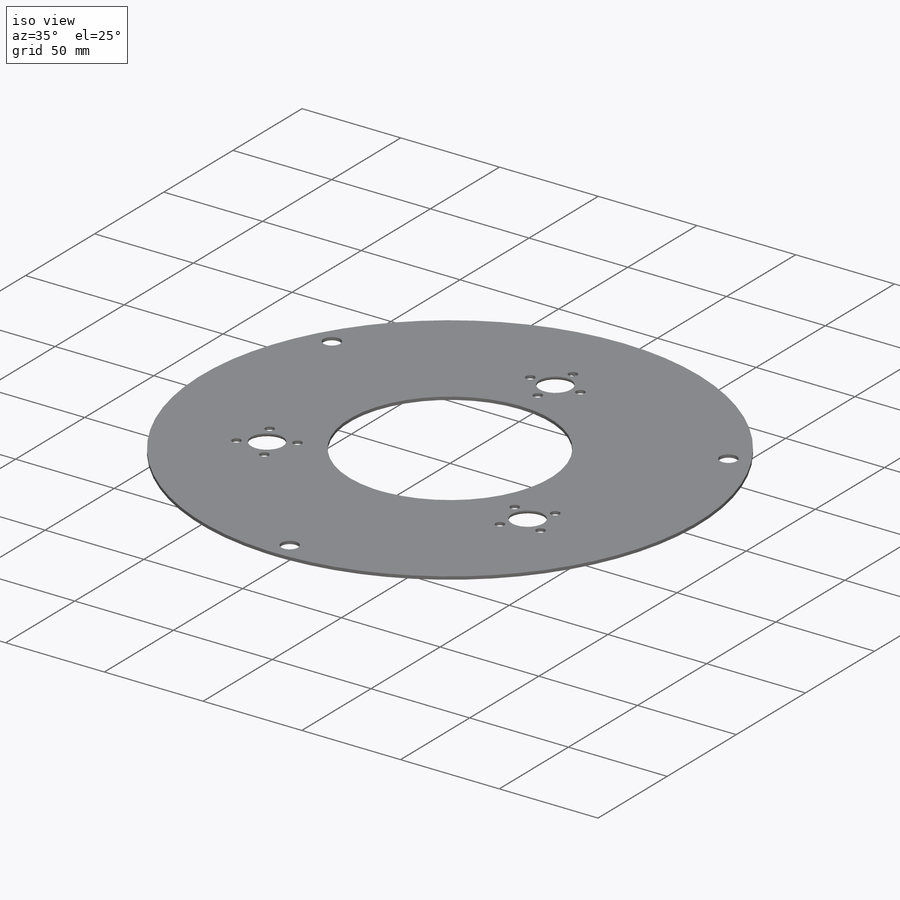
[diagram: iso view]
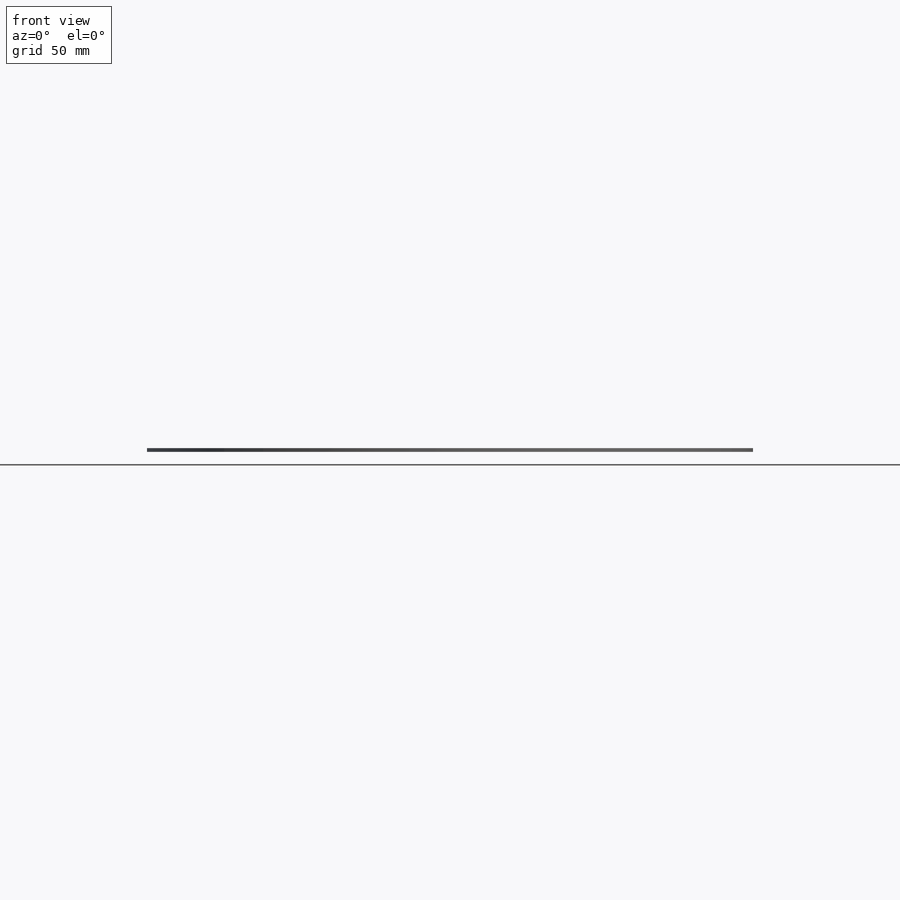
[diagram: front view]
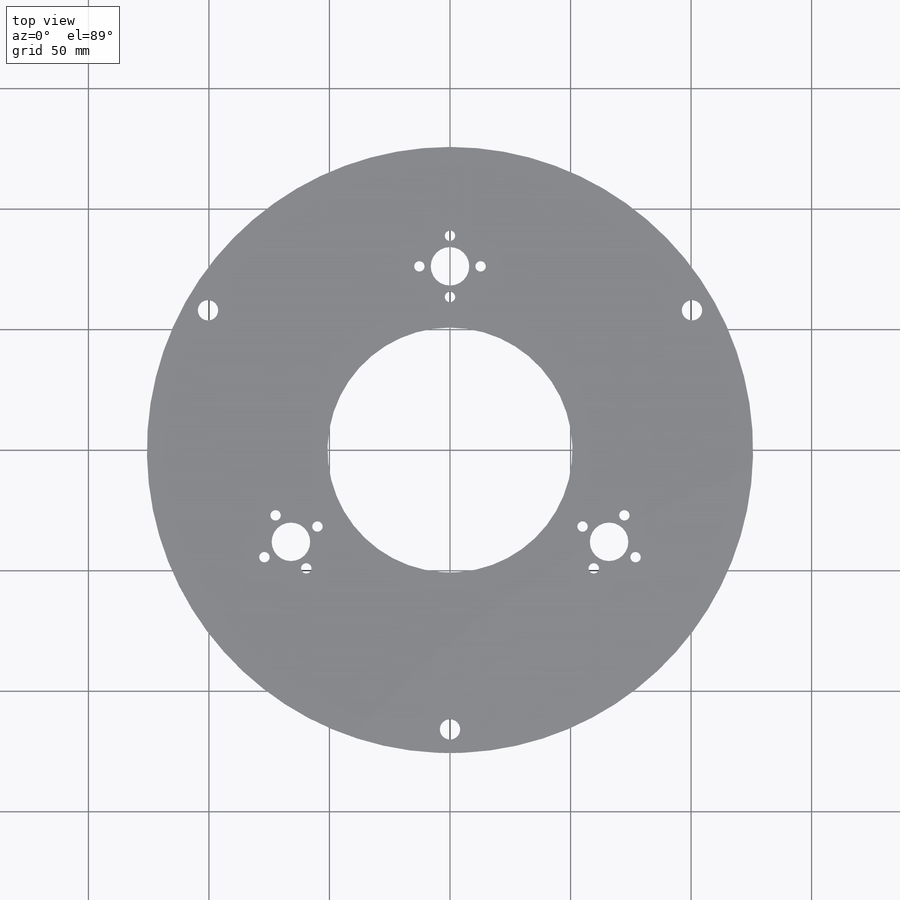
[diagram: top view]
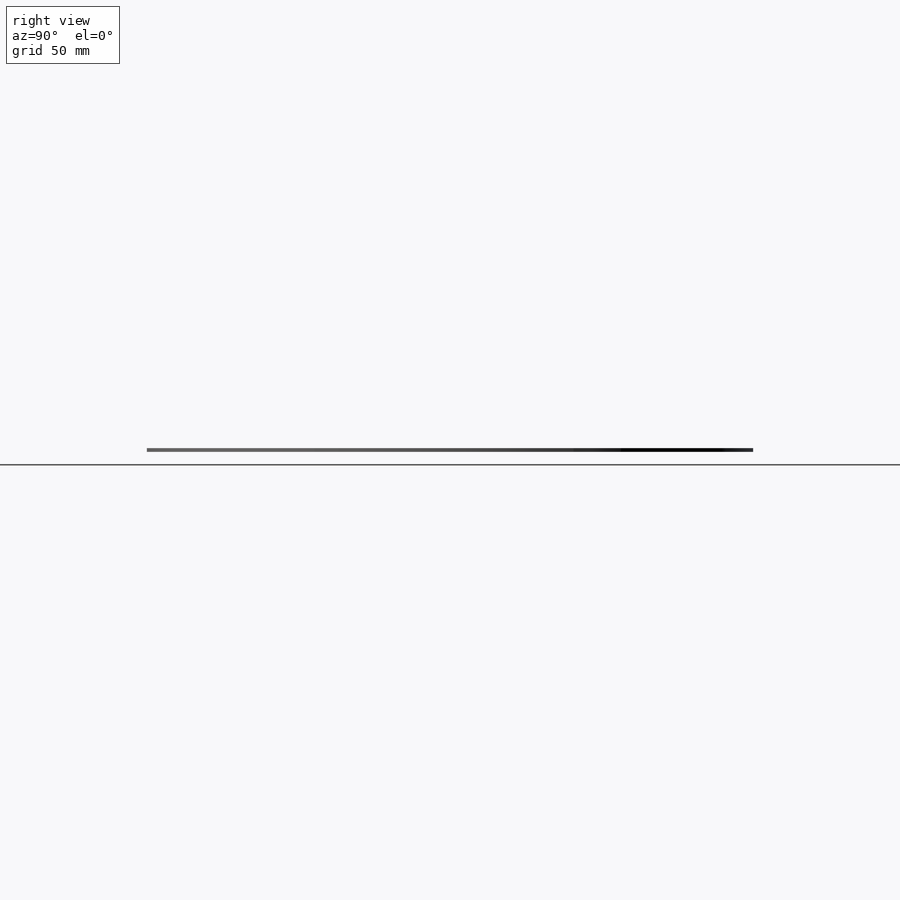
[diagram: right view]
SOLIDWORKS PART (.sldprt)
format: sldprt  version: not decoded by parser v0  size: 398,336 bytes
history: native  units: mm
features: sketch x9, pattern_circular x5, hole x4, material x3, chamfer x2, extrude x1 + 1 further entry (+25 scaffold rows collapsed)
feature tree (50):
  scaffold x25  (default folders/planes/origin — collapsed)
  material  "304 SSTL"
  material  "ID"
  "Origin"  ID=392984584
  sketch  "Sketch1"  dims[D1=251.46mm D2=101.6mm]
  extrude  "Extrude1"  Depth=1.524mm
  hole  "5/16 Clearance Hole1"  Diameter=8.4328mm Depth=1.524mm
  sketch  "Sketch3"  dims[D1=115.9256mm]
  sketch  "Sketch2"  dims[hole-wizard template sketch: 59 standard entries collapsed; hole parameters kept: c18.Thru Hole Dia.=8.4328mm c18.Thru Hole Depth=1.524mm]
  pattern_circular  "CirPattern1"  Count=3 Angle=120deg
  hole  "Hole For 1/4"-20 Weld Nut"  Diameter=12.8016mm Depth=12.7mm
  sketch  "Sketch5"  dims[c1.D1=~78.956576mm c2.D1=30.0deg c2.D2=76.2mm c3.D1=76.2mm]
  sketch  "Sketch4"  dims[hole-wizard template sketch: 46 standard entries collapsed; hole parameters kept: c15.Hole Dia.=12.8016mm c15.Hole Depth=12.7mm c15.D3=~14.816244mm c15.Drill Angle=118.0deg]
  pattern_circular  "1/4"-20 Weld Nut CirPattern"  Count=3 Angle=120deg
  material  "faceID"  cosFaceIDTag=0
  hole  "Hole For 5/16"-18 Weld Nut"  Diameter=15.9766mm Depth=21.59mm
  sketch  "Sketch12"
  sketch  "Sketch11"  dims[Diameter=15.9766mm Depth=21.59mm]
  pattern_circular  "5/16"-18 Weld Nut Hole CirPattern"  Count=3 Angle=120deg
  chamfer  "Chamfer4"  Distance=0.635mm Angle=45deg
  chamfer  "Point2"  [1 undecoded]
  hole  "#6 Clearance Hole1"  Diameter=4.3053mm Depth=1.524mm
  sketch  "Sketch14"  dims[D1=12.7mm]
  sketch  "Sketch13"  dims[hole-wizard template sketch: 60 standard entries collapsed; hole parameters kept: c18.Thru Hole Depth=1.524mm]
  pattern_circular  "CirPattern2"  Count=4 Angle=90deg
  pattern_circular  "CirPattern3"  Count=3 Angle=120deg
decode coverage: 19 of 21 modeling features carry decoded parameters; 1 rows unclassified (native names shown)
note: ~ marks probable driven/reference dimensions
note: 1 parameter value undecoded
summary: Diameter pulled from absorbed wizard sketch
note: suppression state not decoded; provenance and decode notes live in map.json
